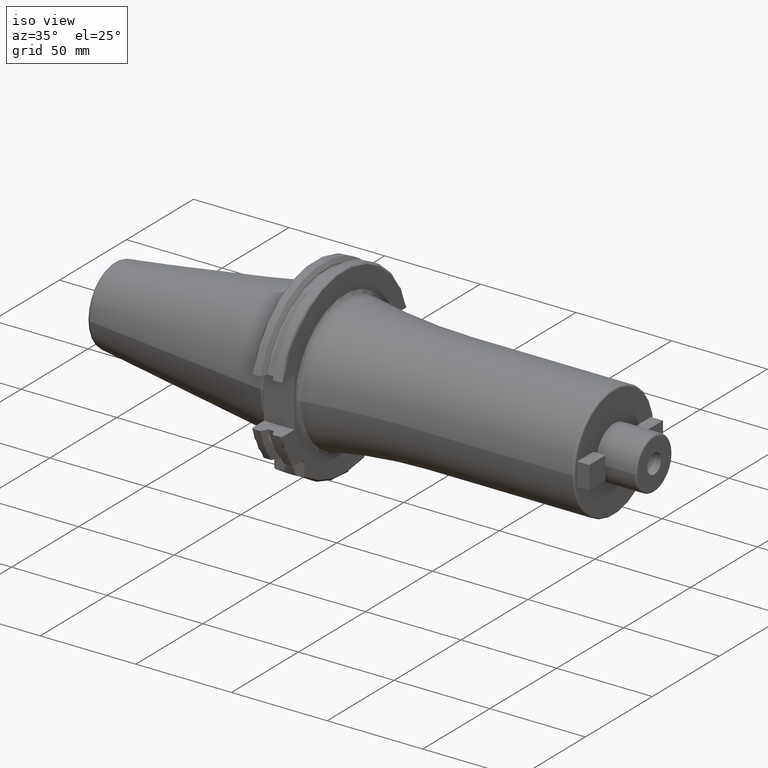
[diagram: clean part render]
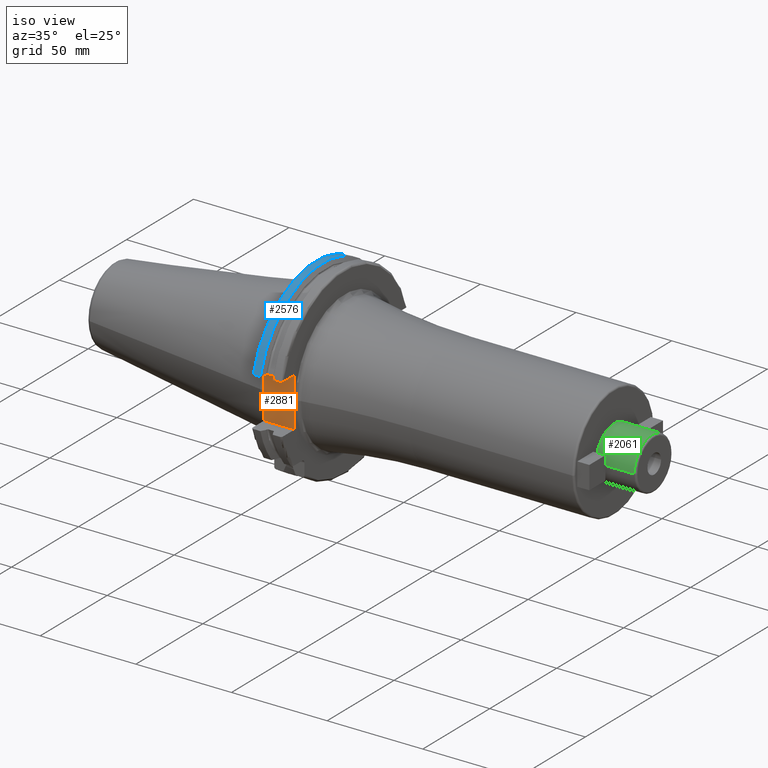
[diagram: same view with three faces highlighted in distinct colors, each labeled with its STEP entity id]
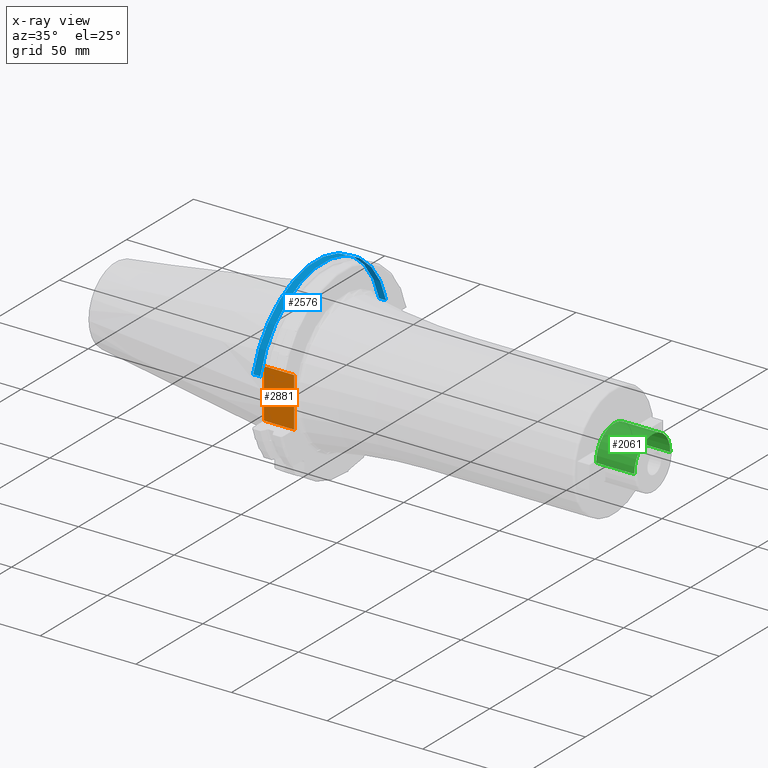
[diagram: x-ray of the same camera — body ghosted, the three highlighted faces saturated]
A machine part, iso view with three faces highlighted in distinct colors.
The next image is the same camera in x-ray (body ghosted, the three faces saturated) — at least one of them is partly hidden behind the body in this view.
Their STEP definitions:

[orange] entity #2881 — the highlighted planar face has unit normal (0, 1, 0).
#156=DIRECTION('',(0.E0,0.E0,1.E0));
#157=VECTOR('',#156,2.58E1);
#158=CARTESIAN_POINT('',(1.905E1,-3.75E1,-1.29E1));
#159=LINE('',#158,#157);
#507=DIRECTION('',(-1.E0,0.E0,0.E0));
#508=VECTOR('',#507,1.585E1);
#509=CARTESIAN_POINT('',(1.905E1,-3.75E1,1.29E1));
#510=LINE('',#509,#508);
#732=DIRECTION('',(0.E0,0.E0,1.E0));
#733=VECTOR('',#732,2.58E1);
#734=CARTESIAN_POINT('',(3.2E0,-3.75E1,-1.29E1));
#735=LINE('',#734,#733);
#959=DIRECTION('',(-1.E0,0.E0,0.E0));
#960=VECTOR('',#959,1.585E1);
#961=CARTESIAN_POINT('',(1.905E1,-3.75E1,-1.29E1));
#962=LINE('',#961,#960);
#1515=CARTESIAN_POINT('',(1.905E1,-3.75E1,-1.29E1));
#1517=VERTEX_POINT('',#1515);
#1518=CARTESIAN_POINT('',(1.905E1,-3.75E1,1.29E1));
#1519=VERTEX_POINT('',#1518);
#1543=CARTESIAN_POINT('',(3.2E0,-3.75E1,-1.29E1));
#1545=VERTEX_POINT('',#1543);
#1546=CARTESIAN_POINT('',(3.2E0,-3.75E1,1.29E1));
#1547=VERTEX_POINT('',#1546);
#2870=CARTESIAN_POINT('',(1.905E1,-3.75E1,-1.29E1));
#2871=DIRECTION('',(0.E0,1.E0,0.E0));
#2872=DIRECTION('',(0.E0,0.E0,1.E0));
#2873=AXIS2_PLACEMENT_3D('',#2870,#2871,#2872);
#2874=PLANE('',#2873);
#2875=ORIENTED_EDGE('',*,*,#1885,.F.);
#2876=ORIENTED_EDGE('',*,*,#2829,.T.);
#2877=ORIENTED_EDGE('',*,*,#2625,.T.);
#2878=ORIENTED_EDGE('',*,*,#2456,.F.);
#2879=EDGE_LOOP('',(#2875,#2876,#2877,#2878));
#2880=FACE_OUTER_BOUND('',#2879,.F.);
#2881=ADVANCED_FACE('',(#2880),#2874,.F.);
#1885=EDGE_CURVE('',#1517,#1519,#159,.T.);
#2456=EDGE_CURVE('',#1519,#1547,#510,.T.);
#2625=EDGE_CURVE('',#1545,#1547,#735,.T.);
#2829=EDGE_CURVE('',#1517,#1545,#962,.T.);

[blue] entity #2576 — the highlighted cylindrical surface (partial cylindrical patch) has radius 48.7375 mm, axis along (1, 0, 0).
#493=CARTESIAN_POINT('',(7.934621614173E0,4.699929686974E1,1.29E1));
#505=CARTESIAN_POINT('',(7.934621614173E0,-4.699929686974E1,1.29E1));
#636=DIRECTION('',(1.E0,0.E0,0.E0));
#637=VECTOR('',#636,3.734621614173E0);
#638=CARTESIAN_POINT('',(4.2E0,4.699929686974E1,1.29E1));
#639=LINE('',#638,#637);
#640=CARTESIAN_POINT('',(7.934621614173E0,0.E0,0.E0));
#641=DIRECTION('',(1.E0,0.E0,0.E0));
#642=DIRECTION('',(0.E0,9.643354064066E-1,2.646832521159E-1));
#643=AXIS2_PLACEMENT_3D('',#640,#641,#642);
#645=DIRECTION('',(1.E0,0.E0,0.E0));
#646=VECTOR('',#645,3.734621614173E0);
#647=CARTESIAN_POINT('',(4.2E0,-4.699929686974E1,1.29E1));
#648=LINE('',#647,#646);
#678=CARTESIAN_POINT('',(4.2E0,0.E0,0.E0));
#679=DIRECTION('',(1.E0,0.E0,0.E0));
#680=DIRECTION('',(0.E0,9.643354064066E-1,2.646832521159E-1));
#681=AXIS2_PLACEMENT_3D('',#678,#679,#680);
#1494=VERTEX_POINT('',#493);
#1495=VERTEX_POINT('',#505);
#1522=CARTESIAN_POINT('',(4.2E0,4.699929686974E1,1.29E1));
#1523=VERTEX_POINT('',#1522);
#1526=CARTESIAN_POINT('',(4.2E0,-4.699929686974E1,1.29E1));
#1527=VERTEX_POINT('',#1526);
#2564=CARTESIAN_POINT('',(-1.076325E2,0.E0,0.E0));
#2565=DIRECTION('',(1.E0,0.E0,0.E0));
#2566=DIRECTION('',(0.E0,-1.E0,0.E0));
#2567=AXIS2_PLACEMENT_3D('',#2564,#2565,#2566);
#2568=CYLINDRICAL_SURFACE('',#2567,4.87375E1);
#2569=ORIENTED_EDGE('',*,*,#2396,.T.);
#2570=ORIENTED_EDGE('',*,*,#2430,.T.);
#2571=ORIENTED_EDGE('',*,*,#2462,.F.);
#2573=ORIENTED_EDGE('',*,*,#2572,.F.);
#2574=EDGE_LOOP('',(#2569,#2570,#2571,#2573));
#2575=FACE_OUTER_BOUND('',#2574,.F.);
#2576=ADVANCED_FACE('',(#2575),#2568,.T.);
#644=CIRCLE('',#643,4.87375E1);
#682=CIRCLE('',#681,4.87375E1);
#2396=EDGE_CURVE('',#1523,#1494,#639,.T.);
#2430=EDGE_CURVE('',#1494,#1495,#644,.T.);
#2462=EDGE_CURVE('',#1527,#1495,#648,.T.);
#2572=EDGE_CURVE('',#1523,#1527,#682,.T.);

[green] entity #2061 — the highlighted cylindrical surface (edge-blend (fillet) strip) has radius 13.5 mm, axis along (1, 0, 0).
#260=CARTESIAN_POINT('',(1.6E2,0.E0,0.E0));
#261=DIRECTION('',(1.E0,0.E0,0.E0));
#262=DIRECTION('',(0.E0,1.E0,0.E0));
#263=AXIS2_PLACEMENT_3D('',#260,#261,#262);
#312=CARTESIAN_POINT('',(1.8E2,0.E0,0.E0));
#313=DIRECTION('',(-1.E0,0.E0,0.E0));
#314=DIRECTION('',(0.E0,-1.E0,0.E0));
#315=AXIS2_PLACEMENT_3D('',#312,#313,#314);
#332=DIRECTION('',(-1.E0,0.E0,1.668015414318E-13));
#333=VECTOR('',#332,2.E1);
#334=CARTESIAN_POINT('',(1.8E2,1.35E1,-3.334928646518E-12));
#335=LINE('',#334,#333);
#336=DIRECTION('',(-1.E0,0.E0,-1.663308882474E-13));
#337=VECTOR('',#336,2.E1);
#338=CARTESIAN_POINT('',(1.8E2,-1.35E1,3.325515582830E-12));
#339=LINE('',#338,#337);
#1610=CARTESIAN_POINT('',(1.6E2,1.35E1,0.E0));
#1611=CARTESIAN_POINT('',(1.6E2,-1.35E1,0.E0));
#1612=VERTEX_POINT('',#1610);
#1613=VERTEX_POINT('',#1611);
#1632=CARTESIAN_POINT('',(1.8E2,1.35E1,0.E0));
#1633=CARTESIAN_POINT('',(1.8E2,-1.35E1,0.E0));
#1634=VERTEX_POINT('',#1632);
#1635=VERTEX_POINT('',#1633);
#2047=CARTESIAN_POINT('',(1.09525E1,0.E0,0.E0));
#2048=DIRECTION('',(1.E0,0.E0,0.E0));
#2049=DIRECTION('',(0.E0,-1.E0,0.E0));
#2050=AXIS2_PLACEMENT_3D('',#2047,#2048,#2049);
#2051=CYLINDRICAL_SURFACE('',#2050,1.35E1);
#2053=ORIENTED_EDGE('',*,*,#2052,.F.);
#2055=ORIENTED_EDGE('',*,*,#2054,.T.);
#2056=ORIENTED_EDGE('',*,*,#2020,.F.);
#2058=ORIENTED_EDGE('',*,*,#2057,.F.);
#2059=EDGE_LOOP('',(#2053,#2055,#2056,#2058));
#2060=FACE_OUTER_BOUND('',#2059,.F.);
#2061=ADVANCED_FACE('',(#2060),#2051,.T.);
#264=CIRCLE('',#263,1.35E1);
#316=CIRCLE('',#315,1.35E1);
#2020=EDGE_CURVE('',#1612,#1613,#264,.T.);
#2052=EDGE_CURVE('',#1635,#1634,#316,.T.);
#2054=EDGE_CURVE('',#1635,#1613,#339,.T.);
#2057=EDGE_CURVE('',#1634,#1612,#335,.T.);